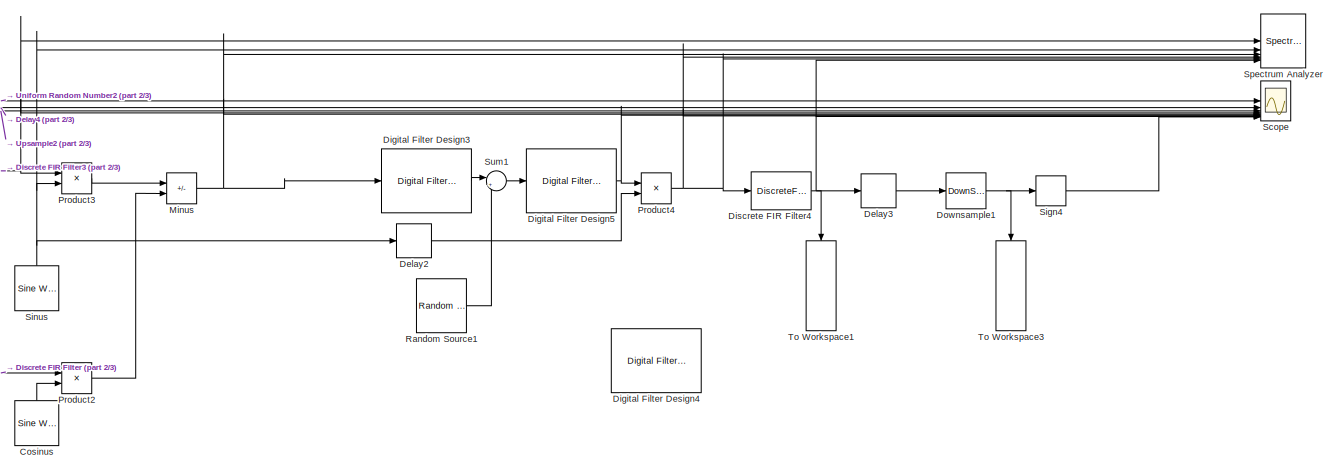
[diagram: root canvas - part 1/3, central region]
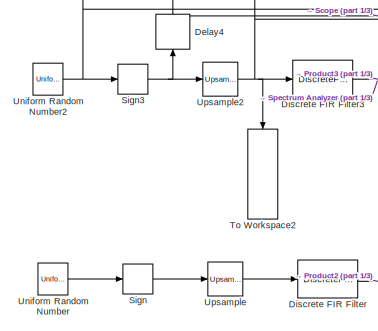
[diagram: root canvas - part 2/3, middle left region]
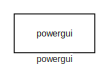
[diagram: root canvas - part 3/3, bottom left region]
MODEL slx_60be02299c7a
KIND model
CONFIG AbsTol = auto
CONFIG EnableMultiTasking = off
CONFIG FixedStep = auto
CONFIG MaxStep = auto
CONFIG MinStep = auto
CONFIG RelTol = 1e-3
CONFIG SampleTimeConstraint = Unconstrained
CONFIG SolverName = VariableStepAuto
CONFIG StartTime = 0.0
CONFIG StopTime = 0.004
BLOCK [Reference] Cosinus  REF=dspsrcs4/Sine Wave
  NameLocation = right
  SourceBlock = dspsrcs4/Sine Wave
  SourceType = Sine Wave
BLOCK [Delay] Delay2
  DelayLength = 848
  InputPortMap = u0
BLOCK [Delay] Delay3
  DelayLength = 54
  InputPortMap = u0
BLOCK [Delay] Delay4
  DelayLength = 10
  InputPortMap = u0
  NameLocation = right
BLOCK [Reference] Digital Filter Design3  REF=dspfdesign/Digital
Filter Design
  SourceBlock = dspfdesign/Digital\nFilter Design
  SourceType = Digital Filter Design
  UserDataPersistent = on
BLOCK [Reference] Digital Filter Design4  REF=dspfdesign/Digital
Filter Design
  Commented = on
  SourceBlock = dspfdesign/Digital\nFilter Design
  SourceType = Digital Filter Design
  UserDataPersistent = on
BLOCK [Reference] Digital Filter Design5  REF=dspfdesign/Digital
Filter Design
  SourceBlock = dspfdesign/Digital\nFilter Design
  SourceType = Digital Filter Design
  UserDataPersistent = on
BLOCK [DiscreteFir] Discrete FIR Filter
  CloseFcn = dspblkCoreblockFVToolHelper(gcbh,'close');
  Coefficients = ones(1,100)
  CopyFcn = dspblkCoreblockFVToolHelper(gcbh,'copy');
  DeleteFcn = dspblkCoreblockFVToolHelper(gcbh,'close');
  InputPortMap = u0
  LoadFcn = dspblkCoreblockFVToolHelper(gcbh,'load');
  ModelCloseFcn = dspblkCoreblockFVToolHelper(gcbh,'close');
  OutputPortMap = o0
  PostSaveFcn = dspblkCoreblockFVToolHelper(gcbh,'postsave');
  PreSaveFcn = dspblkCoreblockFVToolHelper(gcbh,'presave');
BLOCK [DiscreteFir] Discrete FIR Filter3
  CloseFcn = dspblkCoreblockFVToolHelper(gcbh,'close');
  Coefficients = ones(1,100)
  CopyFcn = dspblkCoreblockFVToolHelper(gcbh,'copy');
  DeleteFcn = dspblkCoreblockFVToolHelper(gcbh,'close');
  InputPortMap = u0
  LoadFcn = dspblkCoreblockFVToolHelper(gcbh,'load');
  ModelCloseFcn = dspblkCoreblockFVToolHelper(gcbh,'close');
  OutputPortMap = o0
  PostSaveFcn = dspblkCoreblockFVToolHelper(gcbh,'postsave');
  PreSaveFcn = dspblkCoreblockFVToolHelper(gcbh,'presave');
BLOCK [DiscreteFir] Discrete FIR Filter4
  CloseFcn = dspblkCoreblockFVToolHelper(gcbh,'close');
  Coefficients = ones(1,100)
  CopyFcn = dspblkCoreblockFVToolHelper(gcbh,'copy');
  DeleteFcn = dspblkCoreblockFVToolHelper(gcbh,'close');
  InputPortMap = u0
  LoadFcn = dspblkCoreblockFVToolHelper(gcbh,'load');
  ModelCloseFcn = dspblkCoreblockFVToolHelper(gcbh,'close');
  OutputPortMap = o0
  PostSaveFcn = dspblkCoreblockFVToolHelper(gcbh,'postsave');
  PreSaveFcn = dspblkCoreblockFVToolHelper(gcbh,'presave');
BLOCK [DownSample] Downsample1
  InputProcessing = Elements as channels (sample based)
  N = 100
  RateOptions = Allow multirate processing
BLOCK [Sum] Minus
  IconShape = rectangular
  Inputs = -+
BLOCK [Product] Product2
BLOCK [Product] Product3
BLOCK [Product] Product4
BLOCK [Reference] Random Source1  REF=dspsrcs4/Random
Source
  SourceBlock = dspsrcs4/Random\nSource
  SourceType = dsp.simulink.RandomSource
BLOCK [Scope] Scope
  ActiveDisplayYMaximum = 47.756894728669728
  ActiveDisplayYMinimum = -45.648376895150157
  Floating = off
  GraphicalSettings = {"Style":{"BackgroundColor":[0.12941176470588237,0.12941176470588237,0.12941176470588237],"AxesColor":[0.07058823529411765,0.07058823529411765,0.07058823529411765],"LabelsColor":[0.8509803921568627,0.8509803921568627,0.8509803921568627],"PreserveColors":false,"Visible":[false,false,false,false,false,false,false,false,false],"LineStyle":["-","-","-","-","-","-","-","-","-"],"LineWidth":[1.5,1.5,1.5...<+2989ch>
  MultipleDisplayCache = [{"MaxYLimMag":80.195437015606856,"MaxYLimReal":47.756894728669728,"MinYLimMag":0,"MinYLimReal":-45.648376895150157,"PlotAsMagnitudePhase":false,"ShowGrid":true,"ShowLegend":true,"Title":"%<SignalLabel>","YLabel":""}]
  NumInputPorts = 9
  ScopeFrameLocation = window
  ShowLegend = on
  Visible = on
  WasSavedAsWebScope = on
  WindowPosition = [1.000000,1.000000,2056.000000,1257.000000,]
BLOCK [Signum] Sign
BLOCK [Signum] Sign3
BLOCK [Signum] Sign4
BLOCK [Reference] Sinus  REF=dspsrcs4/Sine Wave
  NameLocation = right
  SourceBlock = dspsrcs4/Sine Wave
  SourceType = Sine Wave
BLOCK [SpectrumAnalyzer] Spectrum Analyzer
  GraphicalSettings = {"GraphicalSettings":{"Style":{"BackgroundColor":[0.12941176470588237,0.12941176470588237,0.12941176470588237],"AxesColor":[0.070588235294117646,0.070588235294117646,0.070588235294117646],"LabelsColor":[0.85098039215686272,0.85098039215686272,0.85098039215686272],"PreserveColors":false,"Visible":[true,true,true,true,true,true],"LineStyle":["-","-","-","-","-","-"],"LineWidth":[1.5,1.5,1.5,1.5,1.5,...<+541ch>
  MaximizeAxes = Off
  NumInputPorts = 6
  ScopeFrameLocation = window
  ShowLegend = on
  Span = 1000000
  SpectrumType = Power density
  SpectrumUnits = dBm/Hz
  StartFrequency = -500000
  StopFrequency = 500000
  Visible = on
  WasSavedAsWebScope = on
  WindowInvariantSamplesPerUpdate = on
  WindowPosition = [1109.000000,602.000000,979.000000,638.000000,]
  YLimits = [-149.136 40.1652]
BLOCK [Sum] Sum1
  Inputs = |++
BLOCK [ToWorkspace] To Workspace1
  FixptAsFi = on
  MaxDataPoints = inf
  NameLocation = left
  SampleTime = -1
  Save2DSignal = 2-D array (concatenate along first dimension)
  VariableName = y1
BLOCK [ToWorkspace] To Workspace2
  FixptAsFi = on
  MaxDataPoints = inf
  NameLocation = left
  SampleTime = -1
  Save2DSignal = 2-D array (concatenate along first dimension)
  VariableName = y2
BLOCK [ToWorkspace] To Workspace3
  FixptAsFi = on
  MaxDataPoints = inf
  NameLocation = left
  SampleTime = -1
  Save2DSignal = 2-D array (concatenate along first dimension)
  VariableName = out
BLOCK [UniformRandomNumber] Uniform Random Number
  SampleTime = 1/10000
BLOCK [UniformRandomNumber] Uniform Random Number2
  SampleTime = 1/10000
BLOCK [Reference] Upsample  REF=dspsigops/Upsample
  LibrarySourceBlock = dsphdlsupportsigops/Upsample
  SourceBlock = dspsigops/Upsample
  SourceType = Upsample
  UserDataPersistent = on
BLOCK [Reference] Upsample2  REF=dspsigops/Upsample
  LibrarySourceBlock = dsphdlsupportsigops/Upsample
  SourceBlock = dspsigops/Upsample
  SourceType = Upsample
  UserDataPersistent = on
BLOCK [Reference] powergui  REF=spspowerguiLib/powergui
  LibrarySourceBlock = sps_lib/powergui
  Priority = 1
  SourceBlock = spspowerguiLib/powergui
  SourceType = PSB option menu block
LINE Cosinus:1 -> Product2:2
LINE Delay2:1 -> Product4:2
LINE Delay3:1 -> Downsample1:1
LINE Delay4:1 -> Scope:2
LINE Digital Filter Design3:1 -> Sum1:1
NET Digital Filter Design5:1 -> Product4:1, Scope:6
NET Discrete FIR Filter3:1 -> Product3:1, Scope:4, Spectrum Analyzer:1
NET Discrete FIR Filter4:1 -> Delay3:1, Scope:8, Spectrum Analyzer:6, To Workspace1:1
LINE Discrete FIR Filter:1 -> Product2:1
NET Downsample1:1 -> Sign4:1, To Workspace3:1
NET Minus:1 -> Digital Filter Design3:1, Scope:5, Spectrum Analyzer:3
LINE Product2:1 -> Minus:2
LINE Product3:1 -> Minus:1
NET Product4:1 -> Discrete FIR Filter4:1, Scope:7, Spectrum Analyzer:4, Spectrum Analyzer:5
LINE Random Source1:1 -> Sum1:2
NET Sign3:1 -> Delay4:1, Upsample2:1
LINE Sign4:1 -> Scope:9
LINE Sign:1 -> Upsample:1
NET Sinus:1 -> Delay2:1, Product3:2, Spectrum Analyzer:2
LINE Sum1:1 -> Digital Filter Design5:1
NET Uniform Random Number2:1 -> Scope:1, Sign3:1
LINE Uniform Random Number:1 -> Sign:1
NET Upsample2:1 -> Discrete FIR Filter3:1, Scope:3, To Workspace2:1
LINE Upsample:1 -> Discrete FIR Filter:1
note: NET lines group one-source signal fan-out (src -> all destinations, sorted); 1:1 wires keep LINE
